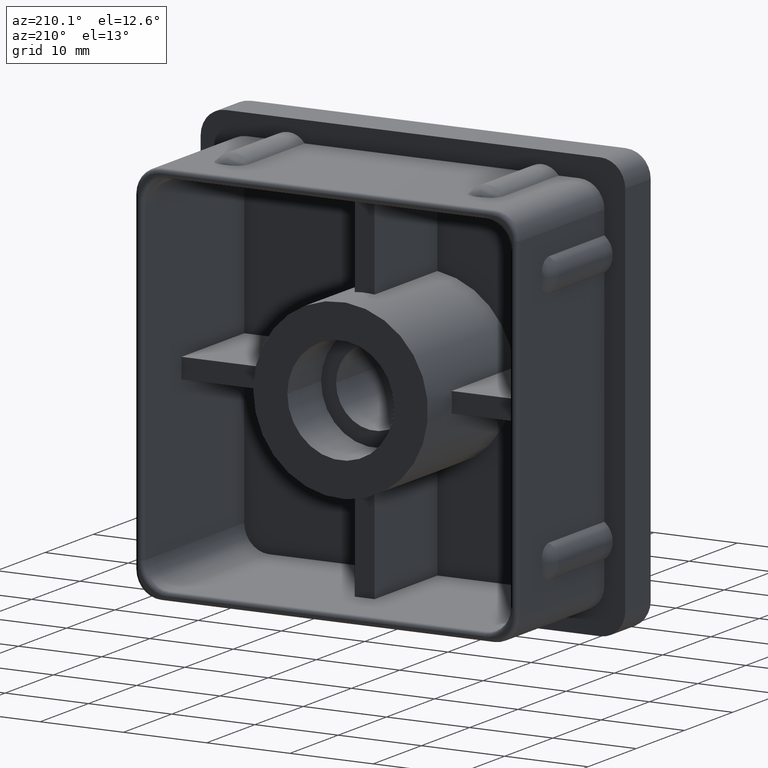
[diagram: clean part render]
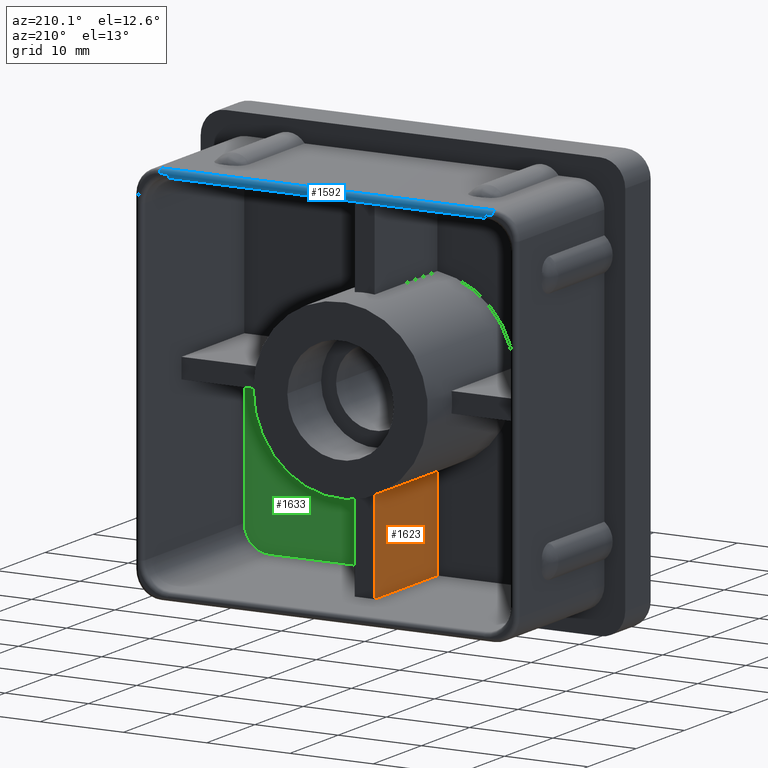
[diagram: same view with three faces highlighted in distinct colors, each labeled with its STEP entity id]
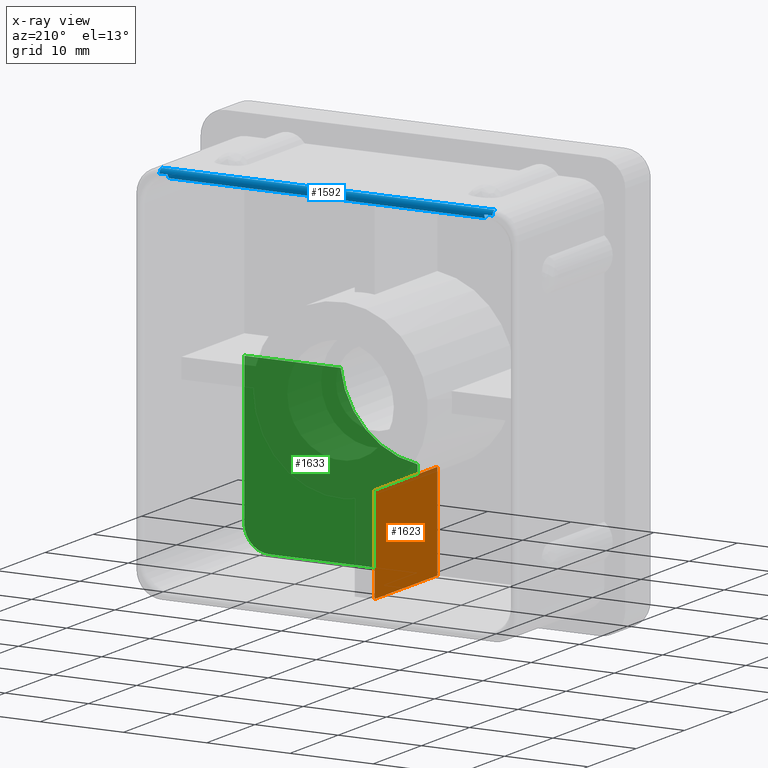
[diagram: x-ray of the same camera — body ghosted, the three highlighted faces saturated]
A machine part, auxiliary view with three faces highlighted in distinct colors.
The next image is the same camera in x-ray (body ghosted, the three faces saturated) — at least one of them is partly hidden behind the body in this view.
Their STEP definitions:

[orange] entity #1623 — the highlighted planar face has unit normal (-1, 0, 0).
#56=PLANE('',#1778);
#257=FACE_OUTER_BOUND('',#349,.T.);
#349=EDGE_LOOP('',(#1446,#1447,#1448,#1449));
#439=LINE('',#3769,#571);
#476=LINE('',#3907,#608);
#489=LINE('',#3937,#621);
#490=LINE('',#3938,#622);
#571=VECTOR('',#1985,13.);
#608=VECTOR('',#2150,11.5687968095718);
#621=VECTOR('',#2185,13.);
#622=VECTOR('',#2186,11.5687968095718);
#763=VERTEX_POINT('',#3766);
#764=VERTEX_POINT('',#3768);
#801=VERTEX_POINT('',#3905);
#807=VERTEX_POINT('',#3936);
#947=EDGE_CURVE('',#763,#764,#439,.T.);
#1018=EDGE_CURVE('',#801,#763,#476,.T.);
#1032=EDGE_CURVE('',#807,#801,#489,.T.);
#1033=EDGE_CURVE('',#764,#807,#490,.T.);
#1446=ORIENTED_EDGE('',*,*,#1032,.F.);
#1447=ORIENTED_EDGE('',*,*,#1033,.F.);
#1448=ORIENTED_EDGE('',*,*,#947,.F.);
#1449=ORIENTED_EDGE('',*,*,#1018,.F.);
#1623=ADVANCED_FACE('',(#257),#56,.T.);
#1778=AXIS2_PLACEMENT_3D('',#3935,#2183,#2184);
#1985=DIRECTION('',(0.,1.,0.));
#2150=DIRECTION('',(-3.10910074777069E-16,0.,-1.));
#2183=DIRECTION('center_axis',(-1.,0.,3.10910074777069E-16));
#2184=DIRECTION('ref_axis',(3.10862446895044E-16,0.,1.));
#2185=DIRECTION('',(0.,-1.,0.));
#2186=DIRECTION('',(3.10910074777069E-16,0.,1.));
#3766=CARTESIAN_POINT('',(-1.20000000000001,-3.,-22.));
#3768=CARTESIAN_POINT('',(-1.20000000000001,10.,-22.));
#3769=CARTESIAN_POINT('',(-1.20000000000001,7.5,-22.));
#3905=CARTESIAN_POINT('',(-1.2,-3.,-10.4312031904282));
#3907=CARTESIAN_POINT('',(-1.2,-3.,-11.));
#3935=CARTESIAN_POINT('Origin',(-1.20000000000001,-3.,-22.));
#3936=CARTESIAN_POINT('',(-1.2,10.,-10.4312031904282));
#3937=CARTESIAN_POINT('',(-1.2,15.,-10.4312031904282));
#3938=CARTESIAN_POINT('',(-1.20000000000001,10.,-22.));

[blue] entity #1592 — the highlighted cylindrical surface (edge-blend (fillet) strip) has radius 0.5 mm, axis along (1, 0, 0).
#95=CIRCLE('',#1680,0.5);
#101=CIRCLE('',#1687,0.5);
#112=CIRCLE('',#1707,0.500000000000003);
#122=CIRCLE('',#1723,0.5);
#172=CYLINDRICAL_SURFACE('',#1726,0.5);
#226=FACE_OUTER_BOUND('',#317,.T.);
#317=EDGE_LOOP('',(#1257,#1258,#1259,#1260,#1261,#1262,#1263,#1264));
#424=LINE('',#3736,#556);
#449=LINE('',#3815,#581);
#450=LINE('',#3816,#582);
#451=LINE('',#3817,#583);
#556=VECTOR('',#1958,0.999999999999996);
#581=VECTOR('',#2041,1.);
#582=VECTOR('',#2042,38.);
#583=VECTOR('',#2043,40.);
#737=VERTEX_POINT('',#3699);
#738=VERTEX_POINT('',#3700);
#743=VERTEX_POINT('',#3711);
#744=VERTEX_POINT('',#3713);
#752=VERTEX_POINT('',#3734);
#768=VERTEX_POINT('',#3780);
#776=VERTEX_POINT('',#3809);
#777=VERTEX_POINT('',#3810);
#913=EDGE_CURVE('',#737,#738,#95,.T.);
#919=EDGE_CURVE('',#744,#743,#101,.T.);
#930=EDGE_CURVE('',#737,#752,#424,.T.);
#953=EDGE_CURVE('',#768,#752,#112,.T.);
#968=EDGE_CURVE('',#776,#777,#122,.T.);
#971=EDGE_CURVE('',#776,#744,#449,.T.);
#972=EDGE_CURVE('',#743,#738,#450,.T.);
#973=EDGE_CURVE('',#768,#777,#451,.T.);
#1257=ORIENTED_EDGE('',*,*,#968,.F.);
#1258=ORIENTED_EDGE('',*,*,#971,.T.);
#1259=ORIENTED_EDGE('',*,*,#919,.T.);
#1260=ORIENTED_EDGE('',*,*,#972,.T.);
#1261=ORIENTED_EDGE('',*,*,#913,.F.);
#1262=ORIENTED_EDGE('',*,*,#930,.T.);
#1263=ORIENTED_EDGE('',*,*,#953,.F.);
#1264=ORIENTED_EDGE('',*,*,#973,.T.);
#1592=ADVANCED_FACE('',(#226),#172,.T.);
#1680=AXIS2_PLACEMENT_3D('',#3701,#1919,#1920);
#1687=AXIS2_PLACEMENT_3D('',#3714,#1933,#1934);
#1707=AXIS2_PLACEMENT_3D('',#3781,#1996,#1997);
#1723=AXIS2_PLACEMENT_3D('',#3811,#2033,#2034);
#1726=AXIS2_PLACEMENT_3D('',#3814,#2039,#2040);
#1919=DIRECTION('center_axis',(-1.,-4.44089209850058E-15,4.4408920985006E-15));
#1920=DIRECTION('ref_axis',(-4.44089209850062E-15,1.,-8.88178419700124E-15));
#1933=DIRECTION('center_axis',(-1.,0.,0.));
#1934=DIRECTION('ref_axis',(0.,1.,0.));
#1958=DIRECTION('',(-1.,0.,0.));
#1996=DIRECTION('center_axis',(-1.,0.,0.));
#1997=DIRECTION('ref_axis',(0.,0.,1.));
#2033=DIRECTION('center_axis',(1.,0.,0.));
#2034=DIRECTION('ref_axis',(0.,1.,0.));
#2039=DIRECTION('center_axis',(1.,0.,0.));
#2040=DIRECTION('ref_axis',(0.,0.707106781186548,0.707106781186548));
#2041=DIRECTION('',(-1.,0.,0.));
#2042=DIRECTION('',(-1.,0.,2.01858731750028E-16));
#2043=DIRECTION('',(1.,0.,0.));
#3699=CARTESIAN_POINT('',(-19.,18.,22.5));
#3700=CARTESIAN_POINT('',(-19.,17.5,22.));
#3701=CARTESIAN_POINT('Origin',(-19.,17.5,22.5));
#3711=CARTESIAN_POINT('',(19.,17.5,22.));
#3713=CARTESIAN_POINT('',(19.,18.,22.5));
#3714=CARTESIAN_POINT('Origin',(19.,17.5,22.5));
#3734=CARTESIAN_POINT('',(-20.,18.,22.5));
#3736=CARTESIAN_POINT('',(-11.5,18.,22.5));
#3780=CARTESIAN_POINT('',(-20.,17.5,23.));
#3781=CARTESIAN_POINT('Origin',(-20.,17.5,22.5));
#3809=CARTESIAN_POINT('',(20.,18.,22.5));
#3810=CARTESIAN_POINT('',(20.,17.5,23.));
#3811=CARTESIAN_POINT('Origin',(20.,17.5,22.5));
#3814=CARTESIAN_POINT('Origin',(-11.5,17.5,22.5));
#3815=CARTESIAN_POINT('',(-11.5,18.,22.5));
#3816=CARTESIAN_POINT('',(11.,17.5,22.));
#3817=CARTESIAN_POINT('',(-11.5,17.5,23.));

[green] entity #1633 — the highlighted planar face has unit normal (0, -1, 0).
#66=PLANE('',#1792);
#110=CIRCLE('',#1702,3.);
#150=CIRCLE('',#1793,10.5);
#267=FACE_OUTER_BOUND('',#359,.T.);
#359=EDGE_LOOP('',(#1488,#1489,#1490,#1491,#1492,#1493));
#429=LINE('',#3748,#561);
#442=LINE('',#3774,#574);
#492=LINE('',#3943,#624);
#508=LINE('',#3983,#640);
#561=VECTOR('',#1969,17.8);
#574=VECTOR('',#1988,17.8);
#624=VECTOR('',#2190,11.5687968095718);
#640=VECTOR('',#2234,11.5687968095718);
#755=VERTEX_POINT('',#3745);
#756=VERTEX_POINT('',#3747);
#761=VERTEX_POINT('',#3759);
#766=VERTEX_POINT('',#3772);
#808=VERTEX_POINT('',#3940);
#819=VERTEX_POINT('',#3981);
#936=EDGE_CURVE('',#755,#756,#429,.T.);
#943=EDGE_CURVE('',#755,#761,#110,.T.);
#950=EDGE_CURVE('',#766,#761,#442,.T.);
#1035=EDGE_CURVE('',#766,#808,#492,.T.);
#1055=EDGE_CURVE('',#808,#819,#150,.T.);
#1056=EDGE_CURVE('',#819,#756,#508,.T.);
#1488=ORIENTED_EDGE('',*,*,#943,.T.);
#1489=ORIENTED_EDGE('',*,*,#950,.F.);
#1490=ORIENTED_EDGE('',*,*,#1035,.T.);
#1491=ORIENTED_EDGE('',*,*,#1055,.T.);
#1492=ORIENTED_EDGE('',*,*,#1056,.T.);
#1493=ORIENTED_EDGE('',*,*,#936,.F.);
#1633=ADVANCED_FACE('',(#267),#66,.F.);
#1702=AXIS2_PLACEMENT_3D('',#3761,#1978,#1979);
#1792=AXIS2_PLACEMENT_3D('',#3980,#2230,#2231);
#1793=AXIS2_PLACEMENT_3D('',#3982,#2232,#2233);
#1969=DIRECTION('',(0.,0.,1.));
#1978=DIRECTION('center_axis',(0.,1.,0.));
#1979=DIRECTION('ref_axis',(0.707106781186547,0.,-0.707106781186548));
#1988=DIRECTION('',(1.,0.,1.00929365875014E-16));
#2190=DIRECTION('',(3.10910074777069E-16,0.,1.));
#2230=DIRECTION('center_axis',(0.,-1.,0.));
#2231=DIRECTION('ref_axis',(0.,0.,-1.));
#2232=DIRECTION('center_axis',(0.,-1.,0.));
#2233=DIRECTION('ref_axis',(-1.,0.,0.));
#2234=DIRECTION('',(1.,0.,-1.27213054904966E-16));
#3745=CARTESIAN_POINT('',(22.,-3.,-19.));
#3747=CARTESIAN_POINT('',(22.,-3.,-1.2));
#3748=CARTESIAN_POINT('',(22.,-3.,-22.));
#3759=CARTESIAN_POINT('',(19.,-3.,-22.));
#3761=CARTESIAN_POINT('Origin',(19.,-3.,-19.));
#3772=CARTESIAN_POINT('',(1.19999999999999,-3.,-22.));
#3774=CARTESIAN_POINT('',(-22.,-3.,-22.));
#3940=CARTESIAN_POINT('',(1.2,-3.,-10.4312031904282));
#3943=CARTESIAN_POINT('',(1.2,-3.,-5.));
#3980=CARTESIAN_POINT('Origin',(-3.78485122031303E-15,-3.,-4.89507424493819E-15));
#3981=CARTESIAN_POINT('',(10.4312031904282,-3.,-1.2));
#3982=CARTESIAN_POINT('Origin',(0.,-3.,0.));
#3983=CARTESIAN_POINT('',(11.,-3.,-1.2));